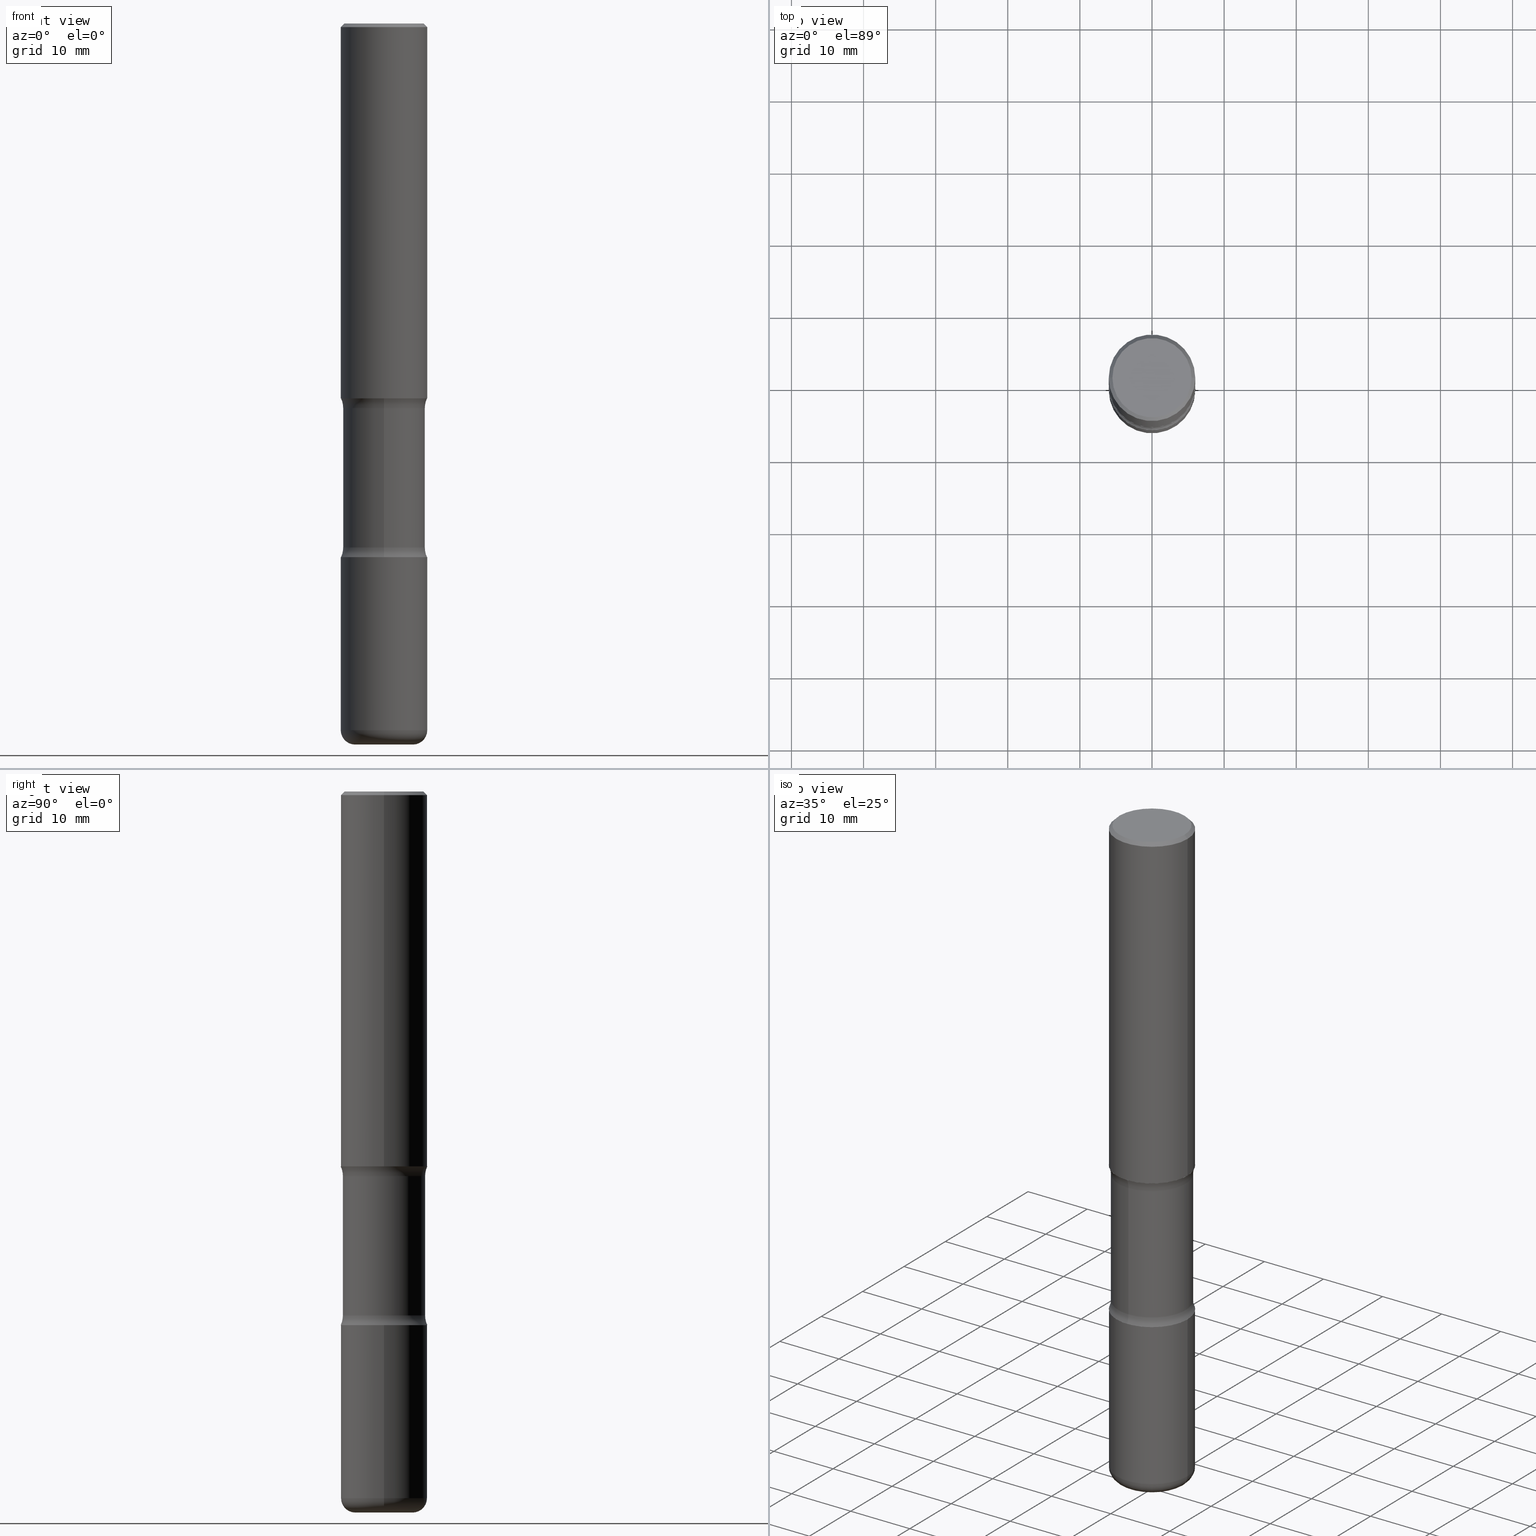
[diagram: canonical four-view strip — front | top / right | iso, engineering-drawing reading convention]
A machine part, canonical four-view strip (front | top / right | iso — engineering-drawing reading convention). The complete STEP part file that produces these views, byte-faithful:
ISO-10303-21;
HEADER;
FILE_DESCRIPTION (( 'STEP AP203' ),
    '1' );
FILE_NAME ('47705.STEP',
    '2024-03-02T07:32:52',
    ( '' ),
    ( '' ),
    'SwSTEP 2.0',
    'SolidWorks 2023',
    '' );
FILE_SCHEMA (( 'CONFIG_CONTROL_DESIGN' ));
ENDSEC;

DATA;
#1 = EDGE_LOOP ( 'NONE', ( #409, #160 ) ) ;
#2 = ADVANCED_FACE ( 'NONE', ( #123 ), #250, .T. ) ;
#3 = ORIENTED_EDGE ( 'NONE', *, *, #294, .F. ) ;
#4 = DIRECTION ( 'NONE',  ( 6.982962677686265922E-15, 1.000000000000000000, -3.652203200085913934E-15 ) ) ;
#5 = DIRECTION ( 'NONE',  ( 6.982962677686265922E-15, 1.000000000000000000, -2.313165108945183485E-15 ) ) ;
#6 = DIRECTION ( 'NONE',  ( 7.105427357601001859E-15, 1.000000000000000000, -3.491481338843145583E-15 ) ) ;
#7 = CLOSED_SHELL ( 'NONE', ( #548, #254, #356, #205, #163, #343 ) ) ;
#8 = AXIS2_PLACEMENT_3D ( 'NONE', #423, #544, #335 ) ;
#9 = MANIFOLD_SOLID_BREP ( 'Body-Move/Copy2[1]', #32 ) ;
#10 = FACE_OUTER_BOUND ( 'NONE', #108, .T. ) ;
#11 = DIRECTION ( 'NONE',  ( 6.982962677686265922E-15, 1.000000000000000000, -3.469747663417773452E-15 ) ) ;
#12 = CARTESIAN_POINT ( 'NONE',  ( 7.124628819939777829E-29, -1.017208173258562247E-14, -2.913400000000000212 ) ) ;
#13 = EDGE_CURVE ( 'NONE', #322, #66, #249, .T. ) ;
#14 = DIRECTION ( 'NONE',  ( 1.000000000000000000, -6.982962677686265133E-15, 0.000000000000000000 ) ) ;
#15 = EDGE_CURVE ( 'NONE', #308, #322, #189, .T. ) ;
#16 = ORIENTED_EDGE ( 'NONE', *, *, #479, .F. ) ;
#17 = EDGE_LOOP ( 'NONE', ( #221, #56, #515, #535 ) ) ;
#18 = ORIENTED_EDGE ( 'NONE', *, *, #261, .T. ) ;
#19 = DIRECTION ( 'NONE',  ( 2.525985086076564115E-29, -3.376177443336566513E-15, -1.000000000000000000 ) ) ;
#20 = ORIENTED_EDGE ( 'NONE', *, *, #58, .T. ) ;
#21 = ORIENTED_EDGE ( 'NONE', *, *, #13, .F. ) ;
#22 = AXIS2_PLACEMENT_3D ( 'NONE', #385, #215, #79 ) ;
#23 = DIRECTION ( 'NONE',  ( 1.000000000000000000, -6.982962677686266711E-15, 4.876176775795936353E-29 ) ) ;
#24 = APPROVAL_DATE_TIME ( #413, #86 ) ;
#25 = DIRECTION ( 'NONE',  ( 2.525985086076564115E-29, -3.376177443336566513E-15, -1.000000000000000000 ) ) ;
#26 = DIRECTION ( 'NONE',  ( 2.525985086076564115E-29, -3.376177443336566513E-15, -1.000000000000000000 ) ) ;
#27 = APPROVAL ( #475, 'UNSPECIFIED' ) ;
#28 = CARTESIAN_POINT ( 'NONE',  ( 5.088323202950023588E-29, -7.401163270367792936E-15, -2.100216601173595432 ) ) ;
#29 = DIRECTION ( 'NONE',  ( 1.000000000000000000, -6.982962677686266711E-15, 4.876176775795936353E-29 ) ) ;
#30 = CARTESIAN_POINT ( 'NONE',  ( 2.439847159583651160E-15, 0.3493999999999899964, -2.860383398826406243 ) ) ;
#31 = DIRECTION ( 'NONE',  ( 1.000000000000000000, -6.982962677686276177E-15, 0.000000000000000000 ) ) ;
#32 = CLOSED_SHELL ( 'NONE', ( #54, #111, #280, #110, #119, #368 ) ) ;
#33 = SECURITY_CLASSIFICATION_LEVEL ( 'unclassified' ) ;
#34 = AXIS2_PLACEMENT_3D ( 'NONE', #229, #145, #271 ) ;
#35 = AXIS2_PLACEMENT_3D ( 'NONE', #50, #143, #11 ) ;
#36 = CARTESIAN_POINT ( 'NONE',  ( 0.000000000000000000, 0.000000000000000000, 0.000000000000000000 ) ) ;
#37 = CYLINDRICAL_SURFACE ( 'NONE', #8, 0.2362000000000001598 ) ;
#38 = COORDINATED_UNIVERSAL_TIME_OFFSET ( 5, 0, .BEHIND. ) ;
#39 = DIRECTION ( 'NONE',  ( -1.000000000000000000, 6.982962677686267499E-15, 0.000000000000000000 ) ) ;
#40 = PERSON_AND_ORGANIZATION ( #397, #161 ) ;
#41 = AXIS2_PLACEMENT_3D ( 'NONE', #12, #255, #388 ) ;
#42 = DIRECTION ( 'NONE',  ( -1.000000000000000000, 6.982962677686265922E-15, -4.876176775795935793E-29 ) ) ;
#43 = AXIS2_PLACEMENT_3D ( 'NONE', #326, #459, #212 ) ;
#44 = ORIENTED_EDGE ( 'NONE', *, *, #477, .T. ) ;
#45 = ADVANCED_FACE ( 'NONE', ( #387 ), #376, .F. ) ;
#46 = FACE_OUTER_BOUND ( 'NONE', #204, .T. ) ;
#47 = EDGE_LOOP ( 'NONE', ( #359, #18, #256, #456 ) ) ;
#48 = CARTESIAN_POINT ( 'NONE',  ( -0.2362000000000001598, -1.930493169962915017E-15, -2.047200000000000131 ) ) ;
#49 = EDGE_LOOP ( 'NONE', ( #233, #201, #44, #114 ) ) ;
#50 = CARTESIAN_POINT ( 'NONE',  ( 4.936620538380257512E-29, -7.247636831167487464E-15, -2.047200000000000131 ) ) ;
#51 = CIRCLE ( 'NONE', #43, 0.2362000000000002431 ) ;
#52 = DIRECTION ( 'NONE',  ( 2.438088387897960049E-29, -3.491481338843145188E-15, -1.000000000000000000 ) ) ;
#53 = AXIS2_PLACEMENT_3D ( 'NONE', #284, #73, #240 ) ;
#54 = ADVANCED_FACE ( 'NONE', ( #210 ), #170, .T. ) ;
#55 = APPLICATION_CONTEXT ( 'configuration controlled 3d designs of mechanical parts and assemblies' ) ;
#56 = ORIENTED_EDGE ( 'NONE', *, *, #272, .F. ) ;
#57 = DIRECTION ( 'NONE',  ( 2.525985086076564115E-29, -3.376177443336566513E-15, -1.000000000000000000 ) ) ;
#58 = EDGE_CURVE ( 'NONE', #313, #358, #296, .T. ) ;
#59 = CARTESIAN_POINT ( 'NONE',  ( -0.1575000000000002232, -1.235207764083634616E-14, -3.858299999999998509 ) ) ;
#60 = DIRECTION ( 'NONE',  ( 2.525985086076564115E-29, -3.376177443336566513E-15, -1.000000000000000000 ) ) ;
#61 = EDGE_LOOP ( 'NONE', ( #238, #226, #90, #188 ) ) ;
#62 = DIRECTION ( 'NONE',  ( 6.982962677686265922E-15, 1.000000000000000000, -2.434802133390609815E-15 ) ) ;
#63 = AXIS2_PLACEMENT_3D ( 'NONE', #508, #295, #31 ) ;
#64 = ORIENTED_EDGE ( 'NONE', *, *, #479, .T. ) ;
#65 = CIRCLE ( 'NONE', #134, 0.2243999999999999606 ) ;
#66 = VERTEX_POINT ( 'NONE', #216 ) ;
#67 = CARTESIAN_POINT ( 'NONE',  ( 9.710227154047748282E-29, -1.362793696358492956E-14, -3.937000000000000277 ) ) ;
#68 = APPLICATION_CONTEXT ( 'configuration controlled 3d designs of mechanical parts and assemblies' ) ;
#69 = CARTESIAN_POINT ( 'NONE',  ( 9.435352294904109900E-29, -1.347118244965850534E-14, -3.858299999999998509 ) ) ;
#70 = CARTESIAN_POINT ( 'NONE',  ( 4.890937612370289799E-31, -6.982962677686315028E-17, -0.02000000000000006981 ) ) ;
#71 = EDGE_LOOP ( 'NONE', ( #501, #74, #520, #543 ) ) ;
#72 = APPROVAL_STATUS ( 'not_yet_approved' ) ;
#73 = DIRECTION ( 'NONE',  ( 2.525985086076564115E-29, -3.376177443336566513E-15, -1.000000000000000000 ) ) ;
#74 = ORIENTED_EDGE ( 'NONE', *, *, #349, .T. ) ;
#75 = EDGE_CURVE ( 'NONE', #322, #358, #553, .T. ) ;
#76 = AXIS2_PLACEMENT_3D ( 'NONE', #344, #135, #242 ) ;
#77 = TOROIDAL_SURFACE ( 'NONE', #473, 0.3493999999999998218, 0.1249999999999999029 ) ;
#78 = CARTESIAN_POINT ( 'NONE',  ( 0.2361999999999998823, -1.690279253850498179E-15, -0.02000000000000006981 ) ) ;
#79 = DIRECTION ( 'NONE',  ( -6.982962677686265922E-15, -1.000000000000000000, 3.376177443336566513E-15 ) ) ;
#80 = CALENDAR_DATE ( 2024, 2, 3 ) ;
#81 = ORIENTED_EDGE ( 'NONE', *, *, #156, .T. ) ;
#82 = CARTESIAN_POINT ( 'NONE',  ( 0.2362000000000003264, -1.512055823412800345E-14, -3.858299999999998509 ) ) ;
#83 = PERSON_AND_ORGANIZATION ( #397, #161 ) ;
#84 = AXIS2_PLACEMENT_3D ( 'NONE', #472, #253, #39 ) ;
#85 = CIRCLE ( 'NONE', #297, 0.2362000000000002153 ) ;
#86 = APPROVAL ( #72, 'UNSPECIFIED' ) ;
#87 = CARTESIAN_POINT ( 'NONE',  ( -0.2361999999999999933, 1.678301941865356591E-15, -1.161852468318208757E-29 ) ) ;
#88 = CARTESIAN_POINT ( 'NONE',  ( 9.627810689950880306E-29, -1.374596203102546026E-14, -3.936999999999998945 ) ) ;
#89 = SHAPE_DEFINITION_REPRESENTATION ( #424, #187 ) ;
#90 = ORIENTED_EDGE ( 'NONE', *, *, #451, .T. ) ;
#91 = PERSON_AND_ORGANIZATION_ROLE ( 'creator' ) ;
#92 = EDGE_CURVE ( 'NONE', #491, #437, #287, .T. ) ;
#93 = AXIS2_PLACEMENT_3D ( 'NONE', #524, #348, #482 ) ;
#94 = AXIS2_PLACEMENT_3D ( 'NONE', #279, #290, #496 ) ;
#95 = CARTESIAN_POINT ( 'NONE',  ( 7.124628819939777829E-29, -1.017208173258562247E-14, -2.913400000000000212 ) ) ;
#96 = LINE ( 'NONE', #259, #276 ) ;
#97 = EDGE_CURVE ( 'NONE', #415, #350, #481, .T. ) ;
#98 = CARTESIAN_POINT ( 'NONE',  ( -1.620449627073565067E-15, -0.2362000000000102629, -2.913399999999999768 ) ) ;
#99 = CARTESIAN_POINT ( 'NONE',  ( 9.627810689950880306E-29, -1.374596203102546026E-14, -3.936999999999998945 ) ) ;
#100 = EDGE_LOOP ( 'NONE', ( #452, #414 ) ) ;
#101 = DIRECTION ( 'NONE',  ( 1.000000000000000000, -6.860497997771530774E-15, 4.842210945089756248E-29 ) ) ;
#102 = LINE ( 'NONE', #449, #403 ) ;
#103 = EDGE_CURVE ( 'NONE', #491, #412, #474, .T. ) ;
#104 = CARTESIAN_POINT ( 'NONE',  ( -0.2161999999999998368, 1.544631344304201183E-15, 4.268512490089730842E-18 ) ) ;
#105 =( LENGTH_UNIT ( ) NAMED_UNIT ( * ) SI_UNIT ( $, .METRE. ) );
#106 = AXIS2_PLACEMENT_3D ( 'NONE', #527, #445, #440 ) ;
#107 = AXIS2_PLACEMENT_3D ( 'NONE', #30, #466, #500 ) ;
#108 = EDGE_LOOP ( 'NONE', ( #281, #487, #236, #328 ) ) ;
#109 = ORIENTED_EDGE ( 'NONE', *, *, #191, .F. ) ;
#110 = ADVANCED_FACE ( 'NONE', ( #288 ), #372, .T. ) ;
#111 = ADVANCED_FACE ( 'NONE', ( #551 ), #447, .T. ) ;
#112 = CLOSED_SHELL ( 'NONE', ( #311, #386, #219, #441, #285, #45, #334, #2 ) ) ;
#113 = AXIS2_PLACEMENT_3D ( 'NONE', #314, #483, #268 ) ;
#114 = ORIENTED_EDGE ( 'NONE', *, *, #408, .F. ) ;
#115 = LOCAL_TIME ( 2, 32, 52.00000000000000000, #283 ) ;
#116 = ORIENTED_EDGE ( 'NONE', *, *, #451, .F. ) ;
#117 = DIRECTION ( 'NONE',  ( 1.000000000000000000, -6.982962677686267499E-15, 0.000000000000000000 ) ) ;
#118 = CARTESIAN_POINT ( 'NONE',  ( -0.2361999999999998823, 1.579546157692632438E-15, -0.02000000000000006981 ) ) ;
#119 = ADVANCED_FACE ( 'NONE', ( #421 ), #37, .T. ) ;
#120 = VERTEX_POINT ( 'NONE', #503 ) ;
#121 = CYLINDRICAL_SURFACE ( 'NONE', #436, 0.2361999999999999933 ) ;
#122 = FACE_OUTER_BOUND ( 'NONE', #49, .T. ) ;
#123 = FACE_OUTER_BOUND ( 'NONE', #47, .T. ) ;
#124 = CARTESIAN_POINT ( 'NONE',  ( 5.070539682259229331E-29, -7.426630284172150130E-15, -2.100216601173595432 ) ) ;
#125 = CIRCLE ( 'NONE', #41, 0.2362000000000001321 ) ;
#126 = LOCAL_TIME ( 2, 32, 52.00000000000000000, #38 ) ;
#127 = DIRECTION ( 'NONE',  ( 1.000000000000000000, 0.000000000000000000, 0.000000000000000000 ) ) ;
#128 = DIRECTION ( 'NONE',  ( 1.000000000000000000, -6.860497997771530774E-15, 4.842210945089756248E-29 ) ) ;
#129 = DIRECTION ( 'NONE',  ( 6.982962677686265922E-15, 1.000000000000000000, -3.652203200085913934E-15 ) ) ;
#130 = EDGE_CURVE ( 'NONE', #469, #371, #465, .T. ) ;
#131 = ORIENTED_EDGE ( 'NONE', *, *, #97, .F. ) ;
#132 = PERSON_AND_ORGANIZATION ( #397, #161 ) ;
#133 = AXIS2_PLACEMENT_3D ( 'NONE', #213, #383, #175 ) ;
#134 = AXIS2_PLACEMENT_3D ( 'NONE', #405, #407, #525 ) ;
#135 = DIRECTION ( 'NONE',  ( -2.445468806185136597E-29, 3.491481338843145583E-15, 1.000000000000000000 ) ) ;
#136 = PERSON_AND_ORGANIZATION ( #397, #161 ) ;
#137 = CC_DESIGN_PERSON_AND_ORGANIZATION_ASSIGNMENT ( #248, #258, ( #252 ) ) ;
#138 = ORIENTED_EDGE ( 'NONE', *, *, #167, .F. ) ;
#139 = EDGE_LOOP ( 'NONE', ( #16, #138 ) ) ;
#140 = FACE_OUTER_BOUND ( 'NONE', #139, .T. ) ;
#141 = EDGE_LOOP ( 'NONE', ( #109, #300, #320, #460 ) ) ;
#142 = CARTESIAN_POINT ( 'NONE',  ( -2.397058000421302516E-15, -0.3494000000000099249, -2.860383398826404022 ) ) ;
#143 = DIRECTION ( 'NONE',  ( 2.525985086076564115E-29, -3.376177443336566513E-15, -1.000000000000000000 ) ) ;
#144 = VERTEX_POINT ( 'NONE', #220 ) ;
#145 = DIRECTION ( 'NONE',  ( -2.445468806185136597E-29, 3.491481338843145583E-15, 1.000000000000000000 ) ) ;
#146 = FACE_OUTER_BOUND ( 'NONE', #530, .T. ) ;
#147 = DIMENSIONAL_EXPONENTS ( 1.000000000000000000, 0.000000000000000000, 0.000000000000000000, 0.000000000000000000, 0.000000000000000000, 0.000000000000000000, 0.000000000000000000 ) ;
#148 = DIRECTION ( 'NONE',  ( 2.525985086076564115E-29, -3.376177443336566513E-15, -1.000000000000000000 ) ) ;
#149 = VERTEX_POINT ( 'NONE', #351 ) ;
#150 = FACE_OUTER_BOUND ( 'NONE', #199, .T. ) ;
#151 = DIRECTION ( 'NONE',  ( -2.445468806185136597E-29, 3.491481338843145583E-15, 1.000000000000000000 ) ) ;
#152 = AXIS2_PLACEMENT_3D ( 'NONE', #124, #60, #4 ) ;
#153 = LOCAL_TIME ( 2, 32, 52.00000000000000000, #173 ) ;
#154 = ORIENTED_EDGE ( 'NONE', *, *, #167, .T. ) ;
#155 = ORIENTED_EDGE ( 'NONE', *, *, #510, .T. ) ;
#156 = EDGE_CURVE ( 'NONE', #437, #491, #345, .T. ) ;
#157 = CARTESIAN_POINT ( 'NONE',  ( 0.000000000000000000, 0.000000000000000000, 0.000000000000000000 ) ) ;
#158 = ORIENTED_EDGE ( 'NONE', *, *, #375, .F. ) ;
#159 = AXIS2_PLACEMENT_3D ( 'NONE', #70, #391, #340 ) ;
#160 = ORIENTED_EDGE ( 'NONE', *, *, #246, .T. ) ;
#161 = ORGANIZATION ( 'UNSPECIFIED', 'UNSPECIFIED', '' ) ;
#162 = MECHANICAL_CONTEXT ( 'NONE', #68, 'mechanical' ) ;
#163 = ADVANCED_FACE ( 'NONE', ( #357 ), #393, .F. ) ;
#164 = VERTEX_POINT ( 'NONE', #104 ) ;
#165 = CARTESIAN_POINT ( 'NONE',  ( 9.435352294904109900E-29, -1.347118244965850534E-14, -3.858299999999998509 ) ) ;
#166 =( NAMED_UNIT ( * ) PLANE_ANGLE_UNIT ( ) SI_UNIT ( $, .RADIAN. ) );
#167 = EDGE_CURVE ( 'NONE', #144, #415, #303, .T. ) ;
#168 = CARTESIAN_POINT ( 'NONE',  ( 5.070539682259229331E-29, -7.426630284172150130E-15, -2.100216601173595432 ) ) ;
#169 = DIRECTION ( 'NONE',  ( -2.445468806185136597E-29, 3.491481338843145583E-15, 1.000000000000000000 ) ) ;
#170 = CYLINDRICAL_SURFACE ( 'NONE', #381, 0.2362000000000001598 ) ;
#171 = TOROIDAL_SURFACE ( 'NONE', #241, 0.3493999999999999884, 0.1250000000000000000 ) ;
#172 = DIRECTION ( 'NONE',  ( 6.982962677686265922E-15, 1.000000000000000000, -2.434802133390609815E-15 ) ) ;
#173 = COORDINATED_UNIVERSAL_TIME_OFFSET ( 5, 0, .BEHIND. ) ;
#174 = CARTESIAN_POINT ( 'NONE',  ( -1.539495750699834052E-15, -0.2244000000000135608, -3.936999999999999389 ) ) ;
#175 = DIRECTION ( 'NONE',  ( 1.000000000000000000, -6.982962677686268288E-15, 4.883557194083113462E-29 ) ) ;
#176 = CIRCLE ( 'NONE', #152, 0.2243999999999999606 ) ;
#177 = CC_DESIGN_APPROVAL ( #506, ( #252 ) ) ;
#178 = EDGE_CURVE ( 'NONE', #406, #120, #264, .T. ) ;
#179 = CARTESIAN_POINT ( 'NONE',  ( -1.579972688886713168E-15, -0.2244000000000099804, -2.860383398826404466 ) ) ;
#180 = FACE_OUTER_BOUND ( 'NONE', #141, .T. ) ;
#181 = ORIENTED_EDGE ( 'NONE', *, *, #97, .T. ) ;
#182 = DIRECTION ( 'NONE',  ( 1.000000000000000000, -6.982962677686265133E-15, 0.000000000000000000 ) ) ;
#183 = UNCERTAINTY_MEASURE_WITH_UNIT (LENGTH_MEASURE( 1.000000000000000082E-05 ), #545, 'distance_accuracy_value', 'NONE');
#184 = EDGE_CURVE ( 'NONE', #164, #412, #96, .T. ) ;
#185 = EDGE_LOOP ( 'NONE', ( #450, #273, #331, #537 ) ) ;
#186 = FACE_OUTER_BOUND ( 'NONE', #185, .T. ) ;
#187 = ADVANCED_BREP_SHAPE_REPRESENTATION ( '47705', ( #9, #209, #192, #353 ), #390 ) ;
#188 = ORIENTED_EDGE ( 'NONE', *, *, #446, .F. ) ;
#189 = CIRCLE ( 'NONE', #511, 0.2243999999999999606 ) ;
#190 = DIRECTION ( 'NONE',  ( -2.445468806185136877E-29, 3.491481338843145188E-15, 1.000000000000000000 ) ) ;
#191 = EDGE_CURVE ( 'NONE', #469, #164, #453, .T. ) ;
#192 = MANIFOLD_SOLID_BREP ( 'Body-Move/Copy2[4]', #112 ) ;
#193 = CYLINDRICAL_SURFACE ( 'NONE', #234, 0.2243999999999999329 ) ;
#194 = DIRECTION ( 'NONE',  ( -6.982962677686264344E-15, -1.000000000000000000, 0.000000000000000000 ) ) ;
#195 = CARTESIAN_POINT ( 'NONE',  ( 5.088323202950023588E-29, -7.401163270367792936E-15, -2.100216601173595432 ) ) ;
#196 = EDGE_LOOP ( 'NONE', ( #534, #3, #244, #20 ) ) ;
#197 = CYLINDRICAL_SURFACE ( 'NONE', #235, 0.2361999999999999933 ) ;
#198 = CIRCLE ( 'NONE', #495, 0.2362000000000002153 ) ;
#199 = EDGE_LOOP ( 'NONE', ( #237, #396 ) ) ;
#200 = CARTESIAN_POINT ( 'NONE',  ( 1.566976824872867821E-15, 0.2243999999999899686, -2.860383398826405799 ) ) ;
#201 = ORIENTED_EDGE ( 'NONE', *, *, #304, .T. ) ;
#202 = DIRECTION ( 'NONE',  ( -2.445468806185136597E-29, 3.491481338843145583E-15, 1.000000000000000000 ) ) ;
#203 = CARTESIAN_POINT ( 'NONE',  ( 0.000000000000000000, 0.000000000000000000, 0.000000000000000000 ) ) ;
#204 = EDGE_LOOP ( 'NONE', ( #367, #224 ) ) ;
#205 = ADVANCED_FACE ( 'NONE', ( #46 ), #223, .F. ) ;
#206 = VECTOR ( 'NONE', #476, 39.37007874015748143 ) ;
#207 = EDGE_LOOP ( 'NONE', ( #21, #400, #319, #278 ) ) ;
#208 = CIRCLE ( 'NONE', #107, 0.1250000000000000000 ) ;
#209 = MANIFOLD_SOLID_BREP ( 'Body-Move/Copy2[2]', #7 ) ;
#210 = FACE_OUTER_BOUND ( 'NONE', #467, .T. ) ;
#211 = DIRECTION ( 'NONE',  ( 0.7071067811865472397, -7.319954787623254468E-15, -0.7071067811865477948 ) ) ;
#212 = DIRECTION ( 'NONE',  ( 6.982962677686265922E-15, 1.000000000000000000, -3.469747663417773452E-15 ) ) ;
#213 = CARTESIAN_POINT ( 'NONE',  ( 9.435352294904109900E-29, -1.347118244965850534E-14, -3.858299999999998509 ) ) ;
#214 = AXIS2_PLACEMENT_3D ( 'NONE', #195, #148, #312 ) ;
#215 = DIRECTION ( 'NONE',  ( -2.525985086076564115E-29, 3.376177443336566513E-15, 1.000000000000000000 ) ) ;
#216 = CARTESIAN_POINT ( 'NONE',  ( -1.620449627073587747E-15, -0.2362000000000074318, -2.047199999999999243 ) ) ;
#217 = APPROVAL_DATE_TIME ( #509, #506 ) ;
#218 = DIRECTION ( 'NONE',  ( -0.7071067811865472397, 2.468850131082253905E-15, -0.7071067811865477948 ) ) ;
#219 = ADVANCED_FACE ( 'NONE', ( #186 ), #471, .F. ) ;
#220 = CARTESIAN_POINT ( 'NONE',  ( -0.1575000000000002232, -1.220986886499822344E-14, -3.936999999999998945 ) ) ;
#221 = ORIENTED_EDGE ( 'NONE', *, *, #130, .F. ) ;
#222 = DATE_AND_TIME ( #549, #153 ) ;
#223 = PLANE ( 'NONE',  #418 ) ;
#224 = ORIENTED_EDGE ( 'NONE', *, *, #191, .T. ) ;
#225 = CARTESIAN_POINT ( 'NONE',  ( -0.2362000000000001598, 1.678301941865357775E-15, -1.161852468318209598E-29 ) ) ;
#226 = ORIENTED_EDGE ( 'NONE', *, *, #92, .T. ) ;
#227 = AXIS2_PLACEMENT_3D ( 'NONE', #338, #505, #514 ) ;
#228 = CARTESIAN_POINT ( 'NONE',  ( 0.2161999999999998368, -1.586759460484351002E-15, 4.268512490111238857E-18 ) ) ;
#229 = CARTESIAN_POINT ( 'NONE',  ( -1.043851414335219820E-46, 1.490343170380447200E-32, 4.268512490100411279E-18 ) ) ;
#230 = DIRECTION ( 'NONE',  ( 1.000000000000000000, -6.982962677686267499E-15, 0.000000000000000000 ) ) ;
#231 = CC_DESIGN_PERSON_AND_ORGANIZATION_ASSIGNMENT ( #132, #91, ( #239 ) ) ;
#232 = DIRECTION ( 'NONE',  ( -2.445468806185136597E-29, 3.491481338843145583E-15, 1.000000000000000000 ) ) ;
#233 = ORIENTED_EDGE ( 'NONE', *, *, #434, .F. ) ;
#234 = AXIS2_PLACEMENT_3D ( 'NONE', #67, #26, #62 ) ;
#235 = AXIS2_PLACEMENT_3D ( 'NONE', #263, #316, #444 ) ;
#236 = ORIENTED_EDGE ( 'NONE', *, *, #58, .F. ) ;
#237 = ORIENTED_EDGE ( 'NONE', *, *, #384, .F. ) ;
#238 = ORIENTED_EDGE ( 'NONE', *, *, #103, .F. ) ;
#239 = PRODUCT_DEFINITION ( 'UNKNOWN', '', #252, #318 ) ;
#240 = DIRECTION ( 'NONE',  ( 6.982962677686265922E-15, 1.000000000000000000, -2.313165108945183485E-15 ) ) ;
#241 = AXIS2_PLACEMENT_3D ( 'NONE', #461, #19, #274 ) ;
#242 = DIRECTION ( 'NONE',  ( 1.000000000000000000, -6.982962677686268288E-15, 4.883557194083113462E-29 ) ) ;
#243 = SECURITY_CLASSIFICATION ( '', '', #33 ) ;
#244 = ORIENTED_EDGE ( 'NONE', *, *, #408, .T. ) ;
#245 = APPLICATION_PROTOCOL_DEFINITION ( 'international standard', 'config_control_design', 1994, #68 ) ;
#246 = EDGE_CURVE ( 'NONE', #120, #458, #125, .T. ) ;
#247 = DIRECTION ( 'NONE',  ( -2.445468806185136597E-29, 3.491481338843145583E-15, 1.000000000000000000 ) ) ;
#248 = PERSON_AND_ORGANIZATION ( #397, #161 ) ;
#249 = CIRCLE ( 'NONE', #538, 0.1249999999999999029 ) ;
#250 = CYLINDRICAL_SURFACE ( 'NONE', #324, 0.2243999999999999329 ) ;
#251 = AXIS2_PLACEMENT_3D ( 'NONE', #299, #512, #42 ) ;
#252 = PRODUCT_DEFINITION_FORMATION_WITH_SPECIFIED_SOURCE ( 'ANY', '', #463, .NOT_KNOWN. ) ;
#253 = DIRECTION ( 'NONE',  ( 2.445468806185136597E-29, -3.491481338843145583E-15, -1.000000000000000000 ) ) ;
#254 = ADVANCED_FACE ( 'NONE', ( #180 ), #518, .T. ) ;
#255 = DIRECTION ( 'NONE',  ( -2.445468806185136597E-29, 3.491481338843145583E-15, 1.000000000000000000 ) ) ;
#256 = ORIENTED_EDGE ( 'NONE', *, *, #529, .T. ) ;
#257 = CONICAL_SURFACE ( 'NONE', #84, 0.2361999999999998823, 0.7853981633974479459 ) ;
#258 = PERSON_AND_ORGANIZATION_ROLE ( 'creator' ) ;
#259 = CARTESIAN_POINT ( 'NONE',  ( -0.2361999999999998823, 1.579546157692632438E-15, -0.02000000000000006981 ) ) ;
#260 = LINE ( 'NONE', #442, #454 ) ;
#261 = EDGE_CURVE ( 'NONE', #322, #308, #176, .T. ) ;
#262 = DIRECTION ( 'NONE',  ( 6.860497997771529985E-15, 1.000000000000000000, 0.000000000000000000 ) ) ;
#263 = CARTESIAN_POINT ( 'NONE',  ( 0.000000000000000000, 0.000000000000000000, 0.000000000000000000 ) ) ;
#264 = LINE ( 'NONE', #225, #389 ) ;
#265 = CIRCLE ( 'NONE', #362, 0.2362000000000001321 ) ;
#266 = DIRECTION ( 'NONE',  ( 1.000000000000000000, -6.982962677686269077E-15, 0.000000000000000000 ) ) ;
#267 = CC_DESIGN_PERSON_AND_ORGANIZATION_ASSIGNMENT ( #321, #370, ( #463 ) ) ;
#268 = DIRECTION ( 'NONE',  ( 6.982962677686265922E-15, 1.000000000000000000, -3.376177443336566513E-15 ) ) ;
#269 = DIRECTION ( 'NONE',  ( 6.982962677686265922E-15, 1.000000000000000000, -3.376177443336566513E-15 ) ) ;
#270 = ORIENTED_EDGE ( 'NONE', *, *, #510, .F. ) ;
#271 = DIRECTION ( 'NONE',  ( 1.000000000000000000, -6.982962677686266711E-15, 4.876217060660159599E-29 ) ) ;
#272 = EDGE_CURVE ( 'NONE', #164, #469, #325, .T. ) ;
#273 = ORIENTED_EDGE ( 'NONE', *, *, #13, .T. ) ;
#274 = DIRECTION ( 'NONE',  ( 6.982962677686265922E-15, 1.000000000000000000, -3.376177443336566513E-15 ) ) ;
#275 = APPLICATION_PROTOCOL_DEFINITION ( 'international standard', 'config_control_design', 1994, #55 ) ;
#276 = VECTOR ( 'NONE', #218, 39.37007874015748143 ) ;
#277 = VECTOR ( 'NONE', #363, 39.37007874015748143 ) ;
#278 = ORIENTED_EDGE ( 'NONE', *, *, #384, .T. ) ;
#279 = CARTESIAN_POINT ( 'NONE',  ( 6.994978375559792251E-29, -9.986975258939122984E-15, -2.860383398826405354 ) ) ;
#280 = ADVANCED_FACE ( 'NONE', ( #140 ), #394, .T. ) ;
#281 = ORIENTED_EDGE ( 'NONE', *, *, #15, .T. ) ;
#282 = FACE_OUTER_BOUND ( 'NONE', #196, .T. ) ;
#283 = COORDINATED_UNIVERSAL_TIME_OFFSET ( 5, 0, .BEHIND. ) ;
#284 = CARTESIAN_POINT ( 'NONE',  ( 7.124628819939777829E-29, -1.017208173258562247E-14, -2.913400000000000212 ) ) ;
#285 = ADVANCED_FACE ( 'NONE', ( #150 ), #522, .F. ) ;
#286 = VERTEX_POINT ( 'NONE', #98 ) ;
#287 = CIRCLE ( 'NONE', #556, 0.2362000000000001321 ) ;
#288 = FACE_OUTER_BOUND ( 'NONE', #492, .T. ) ;
#289 = CIRCLE ( 'NONE', #464, 0.1575000000000002232 ) ;
#290 = DIRECTION ( 'NONE',  ( 2.525985086076564115E-29, -3.376177443336566513E-15, -1.000000000000000000 ) ) ;
#291 = CARTESIAN_POINT ( 'NONE',  ( 9.710227154047748282E-29, -1.362793696358492956E-14, -3.937000000000000277 ) ) ;
#292 = DIRECTION ( 'NONE',  ( 1.000000000000000000, -6.982962677686269077E-15, 0.000000000000000000 ) ) ;
#293 = APPROVAL_ROLE ( '' ) ;
#294 = EDGE_CURVE ( 'NONE', #149, #286, #265, .T. ) ;
#295 = DIRECTION ( 'NONE',  ( -6.982962677686266711E-15, -1.000000000000000000, 3.491481338843145583E-15 ) ) ;
#296 = CIRCLE ( 'NONE', #227, 0.2243999999999999606 ) ;
#297 = AXIS2_PLACEMENT_3D ( 'NONE', #69, #333, #378 ) ;
#298 = PERSON_AND_ORGANIZATION ( #397, #161 ) ;
#299 = CARTESIAN_POINT ( 'NONE',  ( 7.124628819939777829E-29, -1.017208173258562247E-14, -2.913400000000000212 ) ) ;
#300 = ORIENTED_EDGE ( 'NONE', *, *, #130, .T. ) ;
#301 = PERSON_AND_ORGANIZATION_ROLE ( 'classification_officer' ) ;
#302 = DIRECTION ( 'NONE',  ( 1.000000000000000000, -6.982962677686269077E-15, 0.000000000000000000 ) ) ;
#303 = CIRCLE ( 'NONE', #315, 0.1575000000000002232 ) ;
#304 = EDGE_CURVE ( 'NONE', #286, #358, #427, .T. ) ;
#305 = CIRCLE ( 'NONE', #532, 0.2361999999999998823 ) ;
#306 = DIRECTION ( 'NONE',  ( -1.000000000000000000, 6.982962677686265922E-15, -4.876176775795935793E-29 ) ) ;
#307 = DIRECTION ( 'NONE',  ( 2.525985086076564115E-29, -3.376177443336566513E-15, -1.000000000000000000 ) ) ;
#308 = VERTEX_POINT ( 'NONE', #443 ) ;
#309 = CARTESIAN_POINT ( 'NONE',  ( 2.439847159583631044E-15, 0.3493999999999924388, -2.100216601173596320 ) ) ;
#310 = ORIENTED_EDGE ( 'NONE', *, *, #178, .T. ) ;
#311 = ADVANCED_FACE ( 'NONE', ( #10 ), #193, .T. ) ;
#312 = DIRECTION ( 'NONE',  ( 6.982962677686265922E-15, 1.000000000000000000, -3.376177443336566513E-15 ) ) ;
#313 = VERTEX_POINT ( 'NONE', #200 ) ;
#314 = CARTESIAN_POINT ( 'NONE',  ( 5.006363740022212241E-29, -7.147760596879688202E-15, -2.047200000000000131 ) ) ;
#315 = AXIS2_PLACEMENT_3D ( 'NONE', #88, #433, #182 ) ;
#316 = DIRECTION ( 'NONE',  ( -2.445468806185136597E-29, 3.491481338843145583E-15, 1.000000000000000000 ) ) ;
#317 = APPROVAL_PERSON_ORGANIZATION ( #298, #27, #426 ) ;
#318 = DESIGN_CONTEXT ( 'detailed design', #55, 'design' ) ;
#319 = ORIENTED_EDGE ( 'NONE', *, *, #546, .T. ) ;
#320 = ORIENTED_EDGE ( 'NONE', *, *, #323, .T. ) ;
#321 = PERSON_AND_ORGANIZATION ( #397, #161 ) ;
#322 = VERTEX_POINT ( 'NONE', #329 ) ;
#323 = EDGE_CURVE ( 'NONE', #371, #412, #336, .T. ) ;
#324 = AXIS2_PLACEMENT_3D ( 'NONE', #291, #25, #172 ) ;
#325 = CIRCLE ( 'NONE', #34, 0.2161999999999998368 ) ;
#326 = CARTESIAN_POINT ( 'NONE',  ( 4.936620538380257512E-29, -7.247636831167487464E-15, -2.047200000000000131 ) ) ;
#327 = CIRCLE ( 'NONE', #513, 0.07870000000000021423 ) ;
#328 = ORIENTED_EDGE ( 'NONE', *, *, #529, .F. ) ;
#329 = CARTESIAN_POINT ( 'NONE',  ( -1.579972688886734072E-15, -0.2244000000000073713, -2.100216601173594544 ) ) ;
#330 = DIRECTION ( 'NONE',  ( 0.000000000000000000, 0.000000000000000000, 1.000000000000000000 ) ) ;
#331 = ORIENTED_EDGE ( 'NONE', *, *, #540, .T. ) ;
#332 = DIRECTION ( 'NONE',  ( 1.000000000000000000, -6.982962677686266711E-15, 0.000000000000000000 ) ) ;
#333 = DIRECTION ( 'NONE',  ( -2.445468806185136597E-29, 3.491481338843145583E-15, 1.000000000000000000 ) ) ;
#334 = ADVANCED_FACE ( 'NONE', ( #282 ), #171, .F. ) ;
#335 = DIRECTION ( 'NONE',  ( 1.000000000000000000, -6.982962677686266711E-15, 4.876176775795936353E-29 ) ) ;
#336 = CIRCLE ( 'NONE', #360, 0.2361999999999998823 ) ;
#337 = CIRCLE ( 'NONE', #557, 0.1249999999999999029 ) ;
#338 = CARTESIAN_POINT ( 'NONE',  ( 6.990709676060807691E-29, -9.993088279580958225E-15, -2.860383398826405354 ) ) ;
#339 = DATE_TIME_ROLE ( 'creation_date' ) ;
#340 = DIRECTION ( 'NONE',  ( -1.000000000000000000, 6.982962677686267499E-15, 0.000000000000000000 ) ) ;
#341 = CARTESIAN_POINT ( 'NONE',  ( 5.006363740022212241E-29, -7.147760596879688202E-15, -2.047200000000000131 ) ) ;
#342 = ORIENTED_EDGE ( 'NONE', *, *, #404, .T. ) ;
#343 = ADVANCED_FACE ( 'NONE', ( #417 ), #121, .T. ) ;
#344 = CARTESIAN_POINT ( 'NONE',  ( 9.435352294904109900E-29, -1.347118244965850534E-14, -3.858299999999998509 ) ) ;
#345 = CIRCLE ( 'NONE', #550, 0.2362000000000001321 ) ;
#346 = DATE_AND_TIME ( #347, #489 ) ;
#347 = CALENDAR_DATE ( 2024, 2, 3 ) ;
#348 = DIRECTION ( 'NONE',  ( -2.438088387897960049E-29, 3.491481338843145188E-15, 1.000000000000000000 ) ) ;
#349 = EDGE_CURVE ( 'NONE', #406, #350, #198, .T. ) ;
#350 = VERTEX_POINT ( 'NONE', #82 ) ;
#351 = CARTESIAN_POINT ( 'NONE',  ( 1.649375784469567917E-15, 0.2361999999999899458, -2.913400000000000656 ) ) ;
#352 = AXIS2_PLACEMENT_3D ( 'NONE', #361, #528, #306 ) ;
#353 = AXIS2_PLACEMENT_3D ( 'NONE', #203, #330, #127 ) ;
#354 = CARTESIAN_POINT ( 'NONE',  ( 5.006363740022212241E-29, -7.147760596879688202E-15, -2.047200000000000131 ) ) ;
#355 = VERTEX_POINT ( 'NONE', #493 ) ;
#356 = ADVANCED_FACE ( 'NONE', ( #552 ), #257, .T. ) ;
#357 = FACE_OUTER_BOUND ( 'NONE', #365, .T. ) ;
#358 = VERTEX_POINT ( 'NONE', #179 ) ;
#359 = ORIENTED_EDGE ( 'NONE', *, *, #75, .F. ) ;
#360 = AXIS2_PLACEMENT_3D ( 'NONE', #369, #498, #117 ) ;
#361 = CARTESIAN_POINT ( 'NONE',  ( 2.870178087176263655E-28, 1.356904889229186188E-14, -3.936999999999999389 ) ) ;
#362 = AXIS2_PLACEMENT_3D ( 'NONE', #398, #57, #5 ) ;
#363 = DIRECTION ( 'NONE',  ( -2.445468806185136877E-29, 3.491481338843145188E-15, 1.000000000000000000 ) ) ;
#364 = APPROVAL_PERSON_ORGANIZATION ( #499, #86, #536 ) ;
#365 = EDGE_LOOP ( 'NONE', ( #559, #555 ) ) ;
#366 = CARTESIAN_POINT ( 'NONE',  ( 0.2361999999999999933, -1.649375784469496131E-15, 1.151752954443000088E-29 ) ) ;
#367 = ORIENTED_EDGE ( 'NONE', *, *, #272, .T. ) ;
#368 = ADVANCED_FACE ( 'NONE', ( #480 ), #435, .F. ) ;
#369 = CARTESIAN_POINT ( 'NONE',  ( 4.890937612370289799E-31, -6.982962677686315028E-17, -0.02000000000000006981 ) ) ;
#370 = PERSON_AND_ORGANIZATION_ROLE ( 'design_owner' ) ;
#371 = VERTEX_POINT ( 'NONE', #392 ) ;
#372 = TOROIDAL_SURFACE ( 'NONE', #133, 0.1575000000000002232, 0.07870000000000021423 ) ;
#373 = CIRCLE ( 'NONE', #53, 0.2362000000000001321 ) ;
#374 = ORIENTED_EDGE ( 'NONE', *, *, #404, .F. ) ;
#375 = EDGE_CURVE ( 'NONE', #458, #120, #402, .T. ) ;
#376 = PLANE ( 'NONE',  #22 ) ;
#377 = LENGTH_MEASURE_WITH_UNIT ( LENGTH_MEASURE( 0.02539999999999999897 ), #105 );
#378 = DIRECTION ( 'NONE',  ( 1.000000000000000000, -6.982962677686266711E-15, 0.000000000000000000 ) ) ;
#379 = DIRECTION ( 'NONE',  ( 6.860497997771531562E-15, 1.000000000000000000, 0.000000000000000000 ) ) ;
#380 = CARTESIAN_POINT ( 'NONE',  ( 0.1575000000000002232, -1.484577865276104695E-14, -3.936999999999998945 ) ) ;
#381 = AXIS2_PLACEMENT_3D ( 'NONE', #36, #247, #29 ) ;
#382 = CC_DESIGN_APPROVAL ( #86, ( #239 ) ) ;
#383 = DIRECTION ( 'NONE',  ( -2.445468806185136597E-29, 3.491481338843145583E-15, 1.000000000000000000 ) ) ;
#384 = EDGE_CURVE ( 'NONE', #355, #66, #51, .T. ) ;
#385 = CARTESIAN_POINT ( 'NONE',  ( 7.124628819939777829E-29, -1.017208173258562247E-14, -2.913400000000000212 ) ) ;
#386 = ADVANCED_FACE ( 'NONE', ( #122 ), #541, .F. ) ;
#387 = FACE_OUTER_BOUND ( 'NONE', #100, .T. ) ;
#388 = DIRECTION ( 'NONE',  ( 1.000000000000000000, -6.982962677686269077E-15, 0.000000000000000000 ) ) ;
#389 = VECTOR ( 'NONE', #519, 39.37007874015748143 ) ;
#390 =( GEOMETRIC_REPRESENTATION_CONTEXT ( 3 ) GLOBAL_UNCERTAINTY_ASSIGNED_CONTEXT ( ( #183 ) ) GLOBAL_UNIT_ASSIGNED_CONTEXT ( ( #545, #166, #542 ) ) REPRESENTATION_CONTEXT ( 'NONE', 'WORKASPACE' ) );
#391 = DIRECTION ( 'NONE',  ( 2.445468806185136597E-29, -3.491481338843145583E-15, -1.000000000000000000 ) ) ;
#392 = CARTESIAN_POINT ( 'NONE',  ( 0.2361999999999998823, -1.690279253850498179E-15, -0.02000000000000006981 ) ) ;
#393 = PLANE ( 'NONE',  #93 ) ;
#394 = PLANE ( 'NONE',  #352 ) ;
#395 = DIRECTION ( 'NONE',  ( -1.000000000000000000, 6.982962677686265922E-15, -4.876176775795935793E-29 ) ) ;
#396 = ORIENTED_EDGE ( 'NONE', *, *, #540, .F. ) ;
#397 = PERSON ( 'UNSPECIFIED', 'UNSPECIFIED', 'UNSPECIFIED', ('UNSPECIFIED'), ('UNSPECIFIED'), ('UNSPECIFIED') ) ;
#398 = CARTESIAN_POINT ( 'NONE',  ( 7.124628819939777829E-29, -1.017208173258562247E-14, -2.913400000000000212 ) ) ;
#399 = DIRECTION ( 'NONE',  ( -1.000000000000000000, 7.105427357600997914E-15, 0.000000000000000000 ) ) ;
#400 = ORIENTED_EDGE ( 'NONE', *, *, #15, .F. ) ;
#401 = CC_DESIGN_PERSON_AND_ORGANIZATION_ASSIGNMENT ( #40, #301, ( #243 ) ) ;
#402 = CIRCLE ( 'NONE', #539, 0.2362000000000001321 ) ;
#403 = VECTOR ( 'NONE', #523, 39.37007874015748143 ) ;
#404 = EDGE_CURVE ( 'NONE', #350, #406, #85, .T. ) ;
#405 = CARTESIAN_POINT ( 'NONE',  ( 6.990709676060807691E-29, -9.993088279580958225E-15, -2.860383398826405354 ) ) ;
#406 = VERTEX_POINT ( 'NONE', #457 ) ;
#407 = DIRECTION ( 'NONE',  ( 2.525985086076564115E-29, -3.376177443336566513E-15, -1.000000000000000000 ) ) ;
#408 = EDGE_CURVE ( 'NONE', #149, #313, #208, .T. ) ;
#409 = ORIENTED_EDGE ( 'NONE', *, *, #375, .T. ) ;
#410 = ORIENTED_EDGE ( 'NONE', *, *, #349, .F. ) ;
#411 = PRODUCT_RELATED_PRODUCT_CATEGORY ( 'detail', '', ( #463 ) ) ;
#412 = VERTEX_POINT ( 'NONE', #118 ) ;
#413 = DATE_AND_TIME ( #455, #115 ) ;
#414 = ORIENTED_EDGE ( 'NONE', *, *, #434, .T. ) ;
#415 = VERTEX_POINT ( 'NONE', #380 ) ;
#416 = CC_DESIGN_PERSON_AND_ORGANIZATION_ASSIGNMENT ( #83, #478, ( #252 ) ) ;
#417 = FACE_OUTER_BOUND ( 'NONE', #61, .T. ) ;
#418 = AXIS2_PLACEMENT_3D ( 'NONE', #558, #52, #395 ) ;
#419 = CARTESIAN_POINT ( 'NONE',  ( 0.2362000000000001321, -8.797136381349186305E-15, -2.047200000000000131 ) ) ;
#420 = LOCAL_TIME ( 2, 32, 52.00000000000000000, #432 ) ;
#421 = FACE_OUTER_BOUND ( 'NONE', #71, .T. ) ;
#422 = CARTESIAN_POINT ( 'NONE',  ( 4.890937612370289799E-31, -6.982962677686315028E-17, -0.02000000000000006981 ) ) ;
#423 = CARTESIAN_POINT ( 'NONE',  ( 0.000000000000000000, 0.000000000000000000, 0.000000000000000000 ) ) ;
#424 = PRODUCT_DEFINITION_SHAPE ( 'NONE', 'NONE',  #239 ) ;
#425 = DIRECTION ( 'NONE',  ( -2.445468806185136597E-29, 3.491481338843145583E-15, 1.000000000000000000 ) ) ;
#426 = APPROVAL_ROLE ( '' ) ;
#427 = CIRCLE ( 'NONE', #488, 0.1250000000000000000 ) ;
#428 = APPROVAL_PERSON_ORGANIZATION ( #136, #506, #293 ) ;
#429 = CARTESIAN_POINT ( 'NONE',  ( -2.397058000421320660E-15, -0.3494000000000072048, -2.100216601173594544 ) ) ;
#430 = DATE_TIME_ROLE ( 'classification_date' ) ;
#431 = EDGE_LOOP ( 'NONE', ( #64, #155, #374, #131 ) ) ;
#432 = COORDINATED_UNIVERSAL_TIME_OFFSET ( 5, 0, .BEHIND. ) ;
#433 = DIRECTION ( 'NONE',  ( -2.445468806185136597E-29, 3.491481338843145583E-15, 1.000000000000000000 ) ) ;
#434 = EDGE_CURVE ( 'NONE', #286, #149, #373, .T. ) ;
#435 = PLANE ( 'NONE',  #251 ) ;
#436 = AXIS2_PLACEMENT_3D ( 'NONE', #157, #202, #23 ) ;
#437 = VERTEX_POINT ( 'NONE', #419 ) ;
#438 = CC_DESIGN_APPROVAL ( #27, ( #243 ) ) ;
#439 = DATE_AND_TIME ( #516, #126 ) ;
#440 = DIRECTION ( 'NONE',  ( 1.000000000000000000, -6.982962677686266711E-15, 4.876217060660159599E-29 ) ) ;
#441 = ADVANCED_FACE ( 'NONE', ( #502 ), #77, .F. ) ;
#442 = CARTESIAN_POINT ( 'NONE',  ( 0.2362000000000001598, -1.649375784469497314E-15, 1.151752954443000929E-29 ) ) ;
#443 = CARTESIAN_POINT ( 'NONE',  ( 1.566976824872848494E-15, 0.2243999999999925499, -2.100216601173596320 ) ) ;
#444 = DIRECTION ( 'NONE',  ( 1.000000000000000000, -6.982962677686266711E-15, 4.876176775795936353E-29 ) ) ;
#445 = DIRECTION ( 'NONE',  ( -2.445468806185136597E-29, 3.491481338843145583E-15, 1.000000000000000000 ) ) ;
#446 = EDGE_CURVE ( 'NONE', #412, #371, #305, .T. ) ;
#447 = TOROIDAL_SURFACE ( 'NONE', #76, 0.1575000000000002232, 0.07870000000000021423 ) ;
#448 = CIRCLE ( 'NONE', #35, 0.2362000000000002431 ) ;
#449 = CARTESIAN_POINT ( 'NONE',  ( 1.566976824872894642E-15, 0.2243999999999863049, -3.937000000000000721 ) ) ;
#450 = ORIENTED_EDGE ( 'NONE', *, *, #261, .F. ) ;
#451 = EDGE_CURVE ( 'NONE', #437, #371, #490, .T. ) ;
#452 = ORIENTED_EDGE ( 'NONE', *, *, #294, .T. ) ;
#453 = CIRCLE ( 'NONE', #106, 0.2161999999999998368 ) ;
#454 = VECTOR ( 'NONE', #190, 39.37007874015748143 ) ;
#455 = CALENDAR_DATE ( 2024, 2, 3 ) ;
#456 = ORIENTED_EDGE ( 'NONE', *, *, #477, .F. ) ;
#457 = CARTESIAN_POINT ( 'NONE',  ( -0.2362000000000003264, -1.179288050779314737E-14, -3.858299999999998509 ) ) ;
#458 = VERTEX_POINT ( 'NONE', #533 ) ;
#459 = DIRECTION ( 'NONE',  ( 2.525985086076564115E-29, -3.376177443336566513E-15, -1.000000000000000000 ) ) ;
#460 = ORIENTED_EDGE ( 'NONE', *, *, #184, .F. ) ;
#461 = CARTESIAN_POINT ( 'NONE',  ( 6.994978375559792251E-29, -9.986975258939122984E-15, -2.860383398826405354 ) ) ;
#462 = VECTOR ( 'NONE', #211, 39.37007874015748143 ) ;
#463 = PRODUCT ( '47705', '47705', '', ( #162 ) ) ;
#464 = AXIS2_PLACEMENT_3D ( 'NONE', #99, #151, #14 ) ;
#465 = LINE ( 'NONE', #78, #462 ) ;
#466 = DIRECTION ( 'NONE',  ( -1.000000000000000000, 6.982962677686265922E-15, -4.883557194083112340E-29 ) ) ;
#467 = EDGE_LOOP ( 'NONE', ( #342, #310, #158, #497 ) ) ;
#468 = APPROVAL_STATUS ( 'not_yet_approved' ) ;
#469 = VERTEX_POINT ( 'NONE', #228 ) ;
#470 = COORDINATED_UNIVERSAL_TIME_OFFSET ( 5, 0, .BEHIND. ) ;
#471 = TOROIDAL_SURFACE ( 'NONE', #214, 0.3493999999999998218, 0.1249999999999999029 ) ;
#472 = CARTESIAN_POINT ( 'NONE',  ( 4.890937612370289799E-31, -6.982962677686315028E-17, -0.02000000000000006981 ) ) ;
#473 = AXIS2_PLACEMENT_3D ( 'NONE', #28, #307, #269 ) ;
#474 = LINE ( 'NONE', #87, #206 ) ;
#475 = APPROVAL_STATUS ( 'not_yet_approved' ) ;
#476 = DIRECTION ( 'NONE',  ( -2.445468806185136877E-29, 3.491481338843145188E-15, 1.000000000000000000 ) ) ;
#477 = EDGE_CURVE ( 'NONE', #358, #313, #65, .T. ) ;
#478 = PERSON_AND_ORGANIZATION_ROLE ( 'design_supplier' ) ;
#479 = EDGE_CURVE ( 'NONE', #415, #144, #289, .T. ) ;
#480 = FACE_OUTER_BOUND ( 'NONE', #1, .T. ) ;
#481 = CIRCLE ( 'NONE', #63, 0.07870000000000021423 ) ;
#482 = DIRECTION ( 'NONE',  ( 1.000000000000000000, -6.982962677686265922E-15, 4.876176775795935793E-29 ) ) ;
#483 = DIRECTION ( 'NONE',  ( 2.525985086076564115E-29, -3.376177443336566513E-15, -1.000000000000000000 ) ) ;
#484 = DIRECTION ( 'NONE',  ( -2.445468806185136597E-29, 3.491481338843145583E-15, 1.000000000000000000 ) ) ;
#485 = DIRECTION ( 'NONE',  ( -1.000000000000000000, 6.982962677686265922E-15, -4.883557194083112340E-29 ) ) ;
#486 = EDGE_CURVE ( 'NONE', #350, #458, #260, .T. ) ;
#487 = ORIENTED_EDGE ( 'NONE', *, *, #75, .T. ) ;
#488 = AXIS2_PLACEMENT_3D ( 'NONE', #142, #101, #262 ) ;
#489 = LOCAL_TIME ( 2, 32, 52.00000000000000000, #470 ) ;
#490 = LINE ( 'NONE', #366, #277 ) ;
#491 = VERTEX_POINT ( 'NONE', #48 ) ;
#492 = EDGE_LOOP ( 'NONE', ( #270, #154, #181, #410 ) ) ;
#493 = CARTESIAN_POINT ( 'NONE',  ( 1.649375784469546815E-15, 0.2361999999999930266, -2.047200000000001019 ) ) ;
#494 = ORIENTED_EDGE ( 'NONE', *, *, #103, .T. ) ;
#495 = AXIS2_PLACEMENT_3D ( 'NONE', #165, #169, #332 ) ;
#496 = DIRECTION ( 'NONE',  ( 6.982962677686265922E-15, 1.000000000000000000, -3.376177443336566513E-15 ) ) ;
#497 = ORIENTED_EDGE ( 'NONE', *, *, #486, .F. ) ;
#498 = DIRECTION ( 'NONE',  ( -2.445468806185136597E-29, 3.491481338843145583E-15, 1.000000000000000000 ) ) ;
#499 = PERSON_AND_ORGANIZATION ( #397, #161 ) ;
#500 = DIRECTION ( 'NONE',  ( -6.982962677686266711E-15, -1.000000000000000000, 0.000000000000000000 ) ) ;
#501 = ORIENTED_EDGE ( 'NONE', *, *, #178, .F. ) ;
#502 = FACE_OUTER_BOUND ( 'NONE', #207, .T. ) ;
#503 = CARTESIAN_POINT ( 'NONE',  ( -0.2362000000000001321, -1.014333014925670672E-14, -2.913400000000000212 ) ) ;
#504 = CC_DESIGN_SECURITY_CLASSIFICATION ( #243, ( #252 ) ) ;
#505 = DIRECTION ( 'NONE',  ( 2.525985086076564115E-29, -3.376177443336566513E-15, -1.000000000000000000 ) ) ;
#506 = APPROVAL ( #468, 'UNSPECIFIED' ) ;
#507 = DIRECTION ( 'NONE',  ( 2.525985086076564115E-29, -3.376177443336566513E-15, -1.000000000000000000 ) ) ;
#508 = CARTESIAN_POINT ( 'NONE',  ( 0.1575000000000002232, -1.457099907139409361E-14, -3.858299999999998509 ) ) ;
#509 = DATE_AND_TIME ( #80, #420 ) ;
#510 = EDGE_CURVE ( 'NONE', #144, #406, #327, .T. ) ;
#511 = AXIS2_PLACEMENT_3D ( 'NONE', #168, #547, #129 ) ;
#512 = DIRECTION ( 'NONE',  ( 2.438088387897960049E-29, -3.491481338843145188E-15, -1.000000000000000000 ) ) ;
#513 = AXIS2_PLACEMENT_3D ( 'NONE', #59, #6, #399 ) ;
#514 = DIRECTION ( 'NONE',  ( 6.982962677686265922E-15, 1.000000000000000000, -2.434802133390609421E-15 ) ) ;
#515 = ORIENTED_EDGE ( 'NONE', *, *, #184, .T. ) ;
#516 = CALENDAR_DATE ( 2024, 2, 3 ) ;
#517 = ORIENTED_EDGE ( 'NONE', *, *, #323, .F. ) ;
#518 = CONICAL_SURFACE ( 'NONE', #159, 0.2361999999999998823, 0.7853981633974479459 ) ;
#519 = DIRECTION ( 'NONE',  ( -2.445468806185136877E-29, 3.491481338843145188E-15, 1.000000000000000000 ) ) ;
#520 = ORIENTED_EDGE ( 'NONE', *, *, #486, .T. ) ;
#521 = CC_DESIGN_DATE_AND_TIME_ASSIGNMENT ( #346, #430, ( #243 ) ) ;
#522 = PLANE ( 'NONE',  #113 ) ;
#523 = DIRECTION ( 'NONE',  ( 2.525985086076564115E-29, -3.376177443336566513E-15, -1.000000000000000000 ) ) ;
#524 = CARTESIAN_POINT ( 'NONE',  ( 5.006363740022212241E-29, -7.147760596879688202E-15, -2.047200000000000131 ) ) ;
#525 = DIRECTION ( 'NONE',  ( 6.982962677686265922E-15, 1.000000000000000000, -2.434802133390609421E-15 ) ) ;
#526 = DIRECTION ( 'NONE',  ( -2.445468806185136597E-29, 3.491481338843145583E-15, 1.000000000000000000 ) ) ;
#527 = CARTESIAN_POINT ( 'NONE',  ( -1.043851414335219820E-46, 1.490343170380447200E-32, 4.268512490100411279E-18 ) ) ;
#528 = DIRECTION ( 'NONE',  ( 2.438088387897960049E-29, -3.491481338843145188E-15, -1.000000000000000000 ) ) ;
#529 = EDGE_CURVE ( 'NONE', #308, #313, #102, .T. ) ;
#530 = EDGE_LOOP ( 'NONE', ( #81, #494, #517, #116 ) ) ;
#531 = VECTOR ( 'NONE', #507, 39.37007874015748143 ) ;
#532 = AXIS2_PLACEMENT_3D ( 'NONE', #422, #232, #230 ) ;
#533 = CARTESIAN_POINT ( 'NONE',  ( 0.2362000000000001321, -1.182145751705511899E-14, -2.913400000000000212 ) ) ;
#534 = ORIENTED_EDGE ( 'NONE', *, *, #304, .F. ) ;
#535 = ORIENTED_EDGE ( 'NONE', *, *, #446, .T. ) ;
#536 = APPROVAL_ROLE ( '' ) ;
#537 = ORIENTED_EDGE ( 'NONE', *, *, #546, .F. ) ;
#538 = AXIS2_PLACEMENT_3D ( 'NONE', #429, #128, #379 ) ;
#539 = AXIS2_PLACEMENT_3D ( 'NONE', #95, #526, #266 ) ;
#540 = EDGE_CURVE ( 'NONE', #66, #355, #448, .T. ) ;
#541 = TOROIDAL_SURFACE ( 'NONE', #94, 0.3493999999999999884, 0.1250000000000000000 ) ;
#542 =( NAMED_UNIT ( * ) SI_UNIT ( $, .STERADIAN. ) SOLID_ANGLE_UNIT ( ) );
#543 = ORIENTED_EDGE ( 'NONE', *, *, #246, .F. ) ;
#544 = DIRECTION ( 'NONE',  ( -2.445468806185136597E-29, 3.491481338843145583E-15, 1.000000000000000000 ) ) ;
#545 =( CONVERSION_BASED_UNIT ( 'INCH', #377 ) LENGTH_UNIT ( ) NAMED_UNIT ( #147 ) );
#546 = EDGE_CURVE ( 'NONE', #308, #355, #337, .T. ) ;
#547 = DIRECTION ( 'NONE',  ( 2.525985086076564115E-29, -3.376177443336566513E-15, -1.000000000000000000 ) ) ;
#548 = ADVANCED_FACE ( 'NONE', ( #146 ), #197, .T. ) ;
#549 = CALENDAR_DATE ( 2024, 2, 3 ) ;
#550 = AXIS2_PLACEMENT_3D ( 'NONE', #354, #484, #302 ) ;
#551 = FACE_OUTER_BOUND ( 'NONE', #431, .T. ) ;
#552 = FACE_OUTER_BOUND ( 'NONE', #17, .T. ) ;
#553 = LINE ( 'NONE', #174, #531 ) ;
#554 = CC_DESIGN_DATE_AND_TIME_ASSIGNMENT ( #222, #339, ( #239 ) ) ;
#555 = ORIENTED_EDGE ( 'NONE', *, *, #92, .F. ) ;
#556 = AXIS2_PLACEMENT_3D ( 'NONE', #341, #425, #292 ) ;
#557 = AXIS2_PLACEMENT_3D ( 'NONE', #309, #485, #194 ) ;
#558 = CARTESIAN_POINT ( 'NONE',  ( 1.509716530915769534E-15, 0.2161999999999998368, -7.527240092128373149E-16 ) ) ;
#559 = ORIENTED_EDGE ( 'NONE', *, *, #156, .F. ) ;
#560 = APPROVAL_DATE_TIME ( #439, #27 ) ;
ENDSEC;
END-ISO-10303-21;
